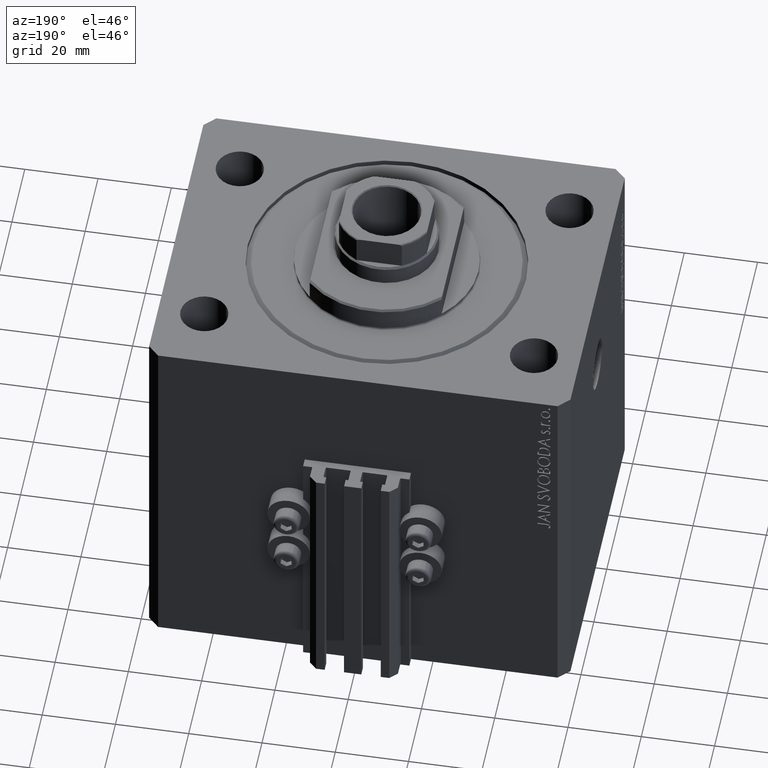
[diagram: clean part render]
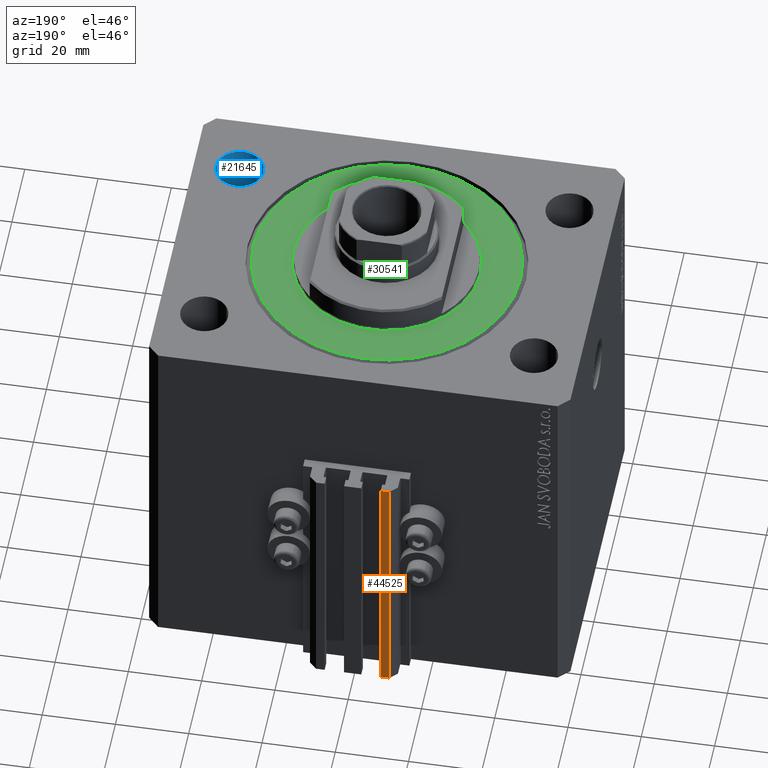
[diagram: same view with three faces highlighted in distinct colors, each labeled with its STEP entity id]
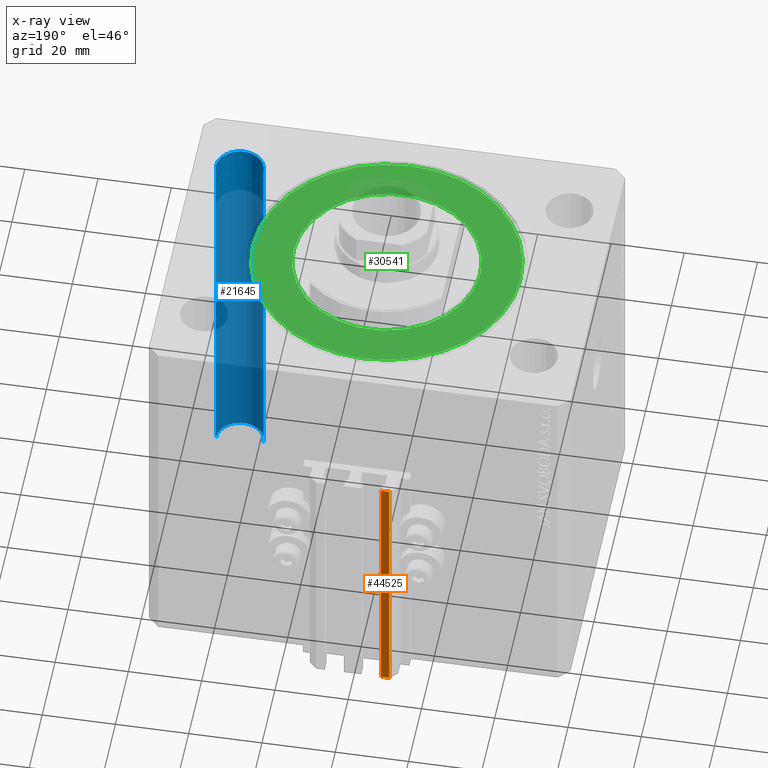
[diagram: x-ray of the same camera — body ghosted, the three highlighted faces saturated]
A machine part, auxiliary view with three faces highlighted in distinct colors.
The next image is the same camera in x-ray (body ghosted, the three faces saturated) — at least one of them is partly hidden behind the body in this view.
Their STEP definitions:

[orange] entity #44525 — the highlighted planar face has unit normal (0, 1, 0).
#1339 = DIRECTION ( 'NONE',  ( -1.000000000000000000, 0.000000000000000000, 0.000000000000000000 ) ) ;
#5255 = ORIENTED_EDGE ( 'NONE', *, *, #41938, .F. ) ;
#7613 = ORIENTED_EDGE ( 'NONE', *, *, #29113, .T. ) ;
#7785 = VERTEX_POINT ( 'NONE', #12567 ) ;
#8353 = CARTESIAN_POINT ( 'NONE',  ( -7.650000000000002132, 52.99999999999999289, -33.00000000000000000 ) ) ;
#8929 = VECTOR ( 'NONE', #1339, 1000.000000000000000 ) ;
#9888 = DIRECTION ( 'NONE',  ( 0.000000000000000000, 0.000000000000000000, 1.000000000000000000 ) ) ;
#10459 = VECTOR ( 'NONE', #31762, 1000.000000000000000 ) ;
#11308 = VERTEX_POINT ( 'NONE', #32176 ) ;
#11453 = DIRECTION ( 'NONE',  ( -1.000000000000000000, 0.000000000000000000, 0.000000000000000000 ) ) ;
#11546 = VECTOR ( 'NONE', #9888, 1000.000000000000000 ) ;
#12567 = CARTESIAN_POINT ( 'NONE',  ( -10.00000000000000000, 52.99999999999999289, -33.00000000000000000 ) ) ;
#12812 = CARTESIAN_POINT ( 'NONE',  ( -7.650000000000002132, 52.99999999999999289, -105.0000000000000000 ) ) ;
#16743 = EDGE_CURVE ( 'NONE', #11308, #7785, #18645, .T. ) ;
#16886 = CARTESIAN_POINT ( 'NONE',  ( -10.00000000000000000, 52.99999999999999289, -105.0000000000000000 ) ) ;
#18645 = LINE ( 'NONE', #8353, #21584 ) ;
#18843 = FACE_OUTER_BOUND ( 'NONE', #44128, .T. ) ;
#20981 = LINE ( 'NONE', #16886, #10459 ) ;
#21584 = VECTOR ( 'NONE', #11453, 1000.000000000000000 ) ;
#22457 = PLANE ( 'NONE',  #27738 ) ;
#24308 = VERTEX_POINT ( 'NONE', #29463 ) ;
#27738 = AXIS2_PLACEMENT_3D ( 'NONE', #33463, #33230, #47146 ) ;
#29113 = EDGE_CURVE ( 'NONE', #44394, #24308, #41314, .T. ) ;
#29271 = LINE ( 'NONE', #35738, #11546 ) ;
#29463 = CARTESIAN_POINT ( 'NONE',  ( -10.00000000000000000, 52.99999999999999289, -105.0000000000000000 ) ) ;
#31762 = DIRECTION ( 'NONE',  ( 0.000000000000000000, 0.000000000000000000, 1.000000000000000000 ) ) ;
#32176 = CARTESIAN_POINT ( 'NONE',  ( -7.650000000000002132, 52.99999999999999289, -33.00000000000000000 ) ) ;
#32695 = EDGE_CURVE ( 'NONE', #24308, #7785, #20981, .T. ) ;
#33230 = DIRECTION ( 'NONE',  ( 0.000000000000000000, 1.000000000000000000, -0.000000000000000000 ) ) ;
#33463 = CARTESIAN_POINT ( 'NONE',  ( -7.650000000000002132, 52.99999999999999289, -105.0000000000000000 ) ) ;
#35423 = ORIENTED_EDGE ( 'NONE', *, *, #32695, .T. ) ;
#35738 = CARTESIAN_POINT ( 'NONE',  ( -7.650000000000002132, 52.99999999999999289, -105.0000000000000000 ) ) ;
#36913 = ORIENTED_EDGE ( 'NONE', *, *, #16743, .F. ) ;
#37809 = CARTESIAN_POINT ( 'NONE',  ( -7.650000000000002132, 52.99999999999999289, -105.0000000000000000 ) ) ;
#41314 = LINE ( 'NONE', #12812, #8929 ) ;
#41938 = EDGE_CURVE ( 'NONE', #44394, #11308, #29271, .T. ) ;
#44128 = EDGE_LOOP ( 'NONE', ( #36913, #5255, #7613, #35423 ) ) ;
#44394 = VERTEX_POINT ( 'NONE', #37809 ) ;
#44525 = ADVANCED_FACE ( 'NONE', ( #18843 ), #22457, .T. ) ;
#47146 = DIRECTION ( 'NONE',  ( 0.000000000000000000, 0.000000000000000000, 1.000000000000000000 ) ) ;

[blue] entity #21645 — the highlighted cylindrical surface (edge-blend (fillet) strip) has radius 6.5 mm, axis along (0, 0, 1).
#993 = CARTESIAN_POINT ( 'NONE',  ( 44.99999999999998579, -27.50000000000000355, -105.0000000000000000 ) ) ;
#1833 = CYLINDRICAL_SURFACE ( 'NONE', #16311, 6.499999999999999112 ) ;
#2945 = CARTESIAN_POINT ( 'NONE',  ( 51.49999999999998579, -27.50000000000000355, -105.0000000000000000 ) ) ;
#3922 = DIRECTION ( 'NONE',  ( 1.000000000000000000, 0.000000000000000000, 0.000000000000000000 ) ) ;
#5421 = FACE_OUTER_BOUND ( 'NONE', #16740, .T. ) ;
#8976 = VERTEX_POINT ( 'NONE', #2945 ) ;
#10166 = ORIENTED_EDGE ( 'NONE', *, *, #27664, .T. ) ;
#11970 = CARTESIAN_POINT ( 'NONE',  ( 38.49999999999998579, -27.50000000000000355, -123.3847763108502278 ) ) ;
#12819 = DIRECTION ( 'NONE',  ( -0.000000000000000000, -0.000000000000000000, 1.000000000000000000 ) ) ;
#13300 = CARTESIAN_POINT ( 'NONE',  ( 38.49999999999998579, -27.50000000000000355, 0.000000000000000000 ) ) ;
#16268 = LINE ( 'NONE', #11970, #19684 ) ;
#16311 = AXIS2_PLACEMENT_3D ( 'NONE', #46119, #16419, #30563 ) ;
#16419 = DIRECTION ( 'NONE',  ( -0.000000000000000000, -0.000000000000000000, 1.000000000000000000 ) ) ;
#16740 = EDGE_LOOP ( 'NONE', ( #31584, #45842, #10166, #35805 ) ) ;
#17138 = EDGE_CURVE ( 'NONE', #8976, #34280, #19301, .T. ) ;
#17279 = VERTEX_POINT ( 'NONE', #13300 ) ;
#19301 = LINE ( 'NONE', #33902, #23106 ) ;
#19684 = VECTOR ( 'NONE', #30899, 1000.000000000000000 ) ;
#19877 = DIRECTION ( 'NONE',  ( -0.000000000000000000, -0.000000000000000000, -1.000000000000000000 ) ) ;
#20227 = VERTEX_POINT ( 'NONE', #27576 ) ;
#21645 = ADVANCED_FACE ( 'NONE', ( #5421 ), #1833, .F. ) ;
#22029 = CIRCLE ( 'NONE', #29645, 6.499999999999999112 ) ;
#23106 = VECTOR ( 'NONE', #12819, 1000.000000000000000 ) ;
#25962 = DIRECTION ( 'NONE',  ( 0.000000000000000000, 0.000000000000000000, 1.000000000000000000 ) ) ;
#27576 = CARTESIAN_POINT ( 'NONE',  ( 38.49999999999998579, -27.50000000000000355, -105.0000000000000000 ) ) ;
#27664 = EDGE_CURVE ( 'NONE', #17279, #34280, #22029, .T. ) ;
#28041 = EDGE_CURVE ( 'NONE', #20227, #17279, #16268, .T. ) ;
#29645 = AXIS2_PLACEMENT_3D ( 'NONE', #33828, #25962, #3922 ) ;
#30563 = DIRECTION ( 'NONE',  ( 1.000000000000000000, 0.000000000000000000, 0.000000000000000000 ) ) ;
#30899 = DIRECTION ( 'NONE',  ( -0.000000000000000000, -0.000000000000000000, 1.000000000000000000 ) ) ;
#31584 = ORIENTED_EDGE ( 'NONE', *, *, #38745, .T. ) ;
#33828 = CARTESIAN_POINT ( 'NONE',  ( 44.99999999999998579, -27.50000000000000355, 0.000000000000000000 ) ) ;
#33902 = CARTESIAN_POINT ( 'NONE',  ( 51.49999999999998579, -27.50000000000000355, -123.3847763108502278 ) ) ;
#34280 = VERTEX_POINT ( 'NONE', #46674 ) ;
#34477 = DIRECTION ( 'NONE',  ( 1.000000000000000000, 0.000000000000000000, 0.000000000000000000 ) ) ;
#35805 = ORIENTED_EDGE ( 'NONE', *, *, #17138, .F. ) ;
#38745 = EDGE_CURVE ( 'NONE', #8976, #20227, #47323, .T. ) ;
#40435 = AXIS2_PLACEMENT_3D ( 'NONE', #993, #19877, #34477 ) ;
#45842 = ORIENTED_EDGE ( 'NONE', *, *, #28041, .T. ) ;
#46119 = CARTESIAN_POINT ( 'NONE',  ( 44.99999999999998579, -27.50000000000000355, -123.3847763108502278 ) ) ;
#46674 = CARTESIAN_POINT ( 'NONE',  ( 51.49999999999998579, -27.50000000000000355, 0.000000000000000000 ) ) ;
#47323 = CIRCLE ( 'NONE', #40435, 6.499999999999999112 ) ;

[green] entity #30541 — the highlighted planar face has unit normal (0, 0, -1).
#72 = CARTESIAN_POINT ( 'NONE',  ( -36.50000000000000000, 4.561809326823889791E-15, 0.000000000000000000 ) ) ;
#145 = FACE_OUTER_BOUND ( 'NONE', #30891, .T. ) ;
#200 = CARTESIAN_POINT ( 'NONE',  ( 0.000000000000000000, 0.000000000000000000, 0.000000000000000000 ) ) ;
#1068 = DIRECTION ( 'NONE',  ( 0.000000000000000000, 0.000000000000000000, 1.000000000000000000 ) ) ;
#3637 = EDGE_CURVE ( 'NONE', #23818, #33740, #13652, .T. ) ;
#3656 = AXIS2_PLACEMENT_3D ( 'NONE', #23324, #1068, #41030 ) ;
#3902 = CIRCLE ( 'NONE', #5404, 25.50000000000000355 ) ;
#5047 = AXIS2_PLACEMENT_3D ( 'NONE', #18094, #32499, #47315 ) ;
#5404 = AXIS2_PLACEMENT_3D ( 'NONE', #12082, #36990, #18559 ) ;
#6251 = CARTESIAN_POINT ( 'NONE',  ( 0.000000000000000000, 0.000000000000000000, 0.000000000000000000 ) ) ;
#6351 = ORIENTED_EDGE ( 'NONE', *, *, #35912, .T. ) ;
#6493 = DIRECTION ( 'NONE',  ( -0.000000000000000000, -0.000000000000000000, -1.000000000000000000 ) ) ;
#8523 = AXIS2_PLACEMENT_3D ( 'NONE', #6251, #6493, #28758 ) ;
#9342 = EDGE_CURVE ( 'NONE', #17396, #46914, #3902, .T. ) ;
#12082 = CARTESIAN_POINT ( 'NONE',  ( 0.000000000000000000, 0.000000000000000000, 0.000000000000000000 ) ) ;
#13652 = CIRCLE ( 'NONE', #32032, 36.50000000000000000 ) ;
#14432 = ORIENTED_EDGE ( 'NONE', *, *, #9342, .T. ) ;
#14630 = CIRCLE ( 'NONE', #8523, 36.50000000000000000 ) ;
#17396 = VERTEX_POINT ( 'NONE', #30921 ) ;
#17643 = FACE_BOUND ( 'NONE', #30830, .T. ) ;
#18094 = CARTESIAN_POINT ( 'NONE',  ( 0.000000000000000000, 0.000000000000000000, 0.000000000000000000 ) ) ;
#18147 = DIRECTION ( 'NONE',  ( 1.000000000000000000, 0.000000000000000000, 0.000000000000000000 ) ) ;
#18559 = DIRECTION ( 'NONE',  ( 1.000000000000000000, 0.000000000000000000, 0.000000000000000000 ) ) ;
#23324 = CARTESIAN_POINT ( 'NONE',  ( 0.000000000000000000, 0.000000000000000000, 0.000000000000000000 ) ) ;
#23818 = VERTEX_POINT ( 'NONE', #25134 ) ;
#24320 = CIRCLE ( 'NONE', #3656, 25.50000000000000355 ) ;
#25134 = CARTESIAN_POINT ( 'NONE',  ( 36.50000000000000000, 0.000000000000000000, 0.000000000000000000 ) ) ;
#28758 = DIRECTION ( 'NONE',  ( 1.000000000000000000, 0.000000000000000000, 0.000000000000000000 ) ) ;
#29706 = ORIENTED_EDGE ( 'NONE', *, *, #3637, .T. ) ;
#30541 = ADVANCED_FACE ( 'NONE', ( #17643, #145 ), #47090, .F. ) ;
#30830 = EDGE_LOOP ( 'NONE', ( #6351, #14432 ) ) ;
#30891 = EDGE_LOOP ( 'NONE', ( #29706, #45610 ) ) ;
#30921 = CARTESIAN_POINT ( 'NONE',  ( -25.50000000000000355, 3.122849337825751011E-15, 2.168404344971008868E-16 ) ) ;
#32032 = AXIS2_PLACEMENT_3D ( 'NONE', #200, #37038, #18147 ) ;
#32499 = DIRECTION ( 'NONE',  ( 0.000000000000000000, 0.000000000000000000, 1.000000000000000000 ) ) ;
#33740 = VERTEX_POINT ( 'NONE', #72 ) ;
#35912 = EDGE_CURVE ( 'NONE', #46914, #17396, #24320, .T. ) ;
#36990 = DIRECTION ( 'NONE',  ( 0.000000000000000000, 0.000000000000000000, 1.000000000000000000 ) ) ;
#37038 = DIRECTION ( 'NONE',  ( -0.000000000000000000, -0.000000000000000000, -1.000000000000000000 ) ) ;
#41030 = DIRECTION ( 'NONE',  ( 1.000000000000000000, 0.000000000000000000, 0.000000000000000000 ) ) ;
#41428 = CARTESIAN_POINT ( 'NONE',  ( 25.50000000000000355, 0.000000000000000000, 2.168404344971008868E-16 ) ) ;
#42180 = EDGE_CURVE ( 'NONE', #33740, #23818, #14630, .T. ) ;
#45610 = ORIENTED_EDGE ( 'NONE', *, *, #42180, .T. ) ;
#46914 = VERTEX_POINT ( 'NONE', #41428 ) ;
#47090 = PLANE ( 'NONE',  #5047 ) ;
#47315 = DIRECTION ( 'NONE',  ( 1.000000000000000000, 0.000000000000000000, -0.000000000000000000 ) ) ;